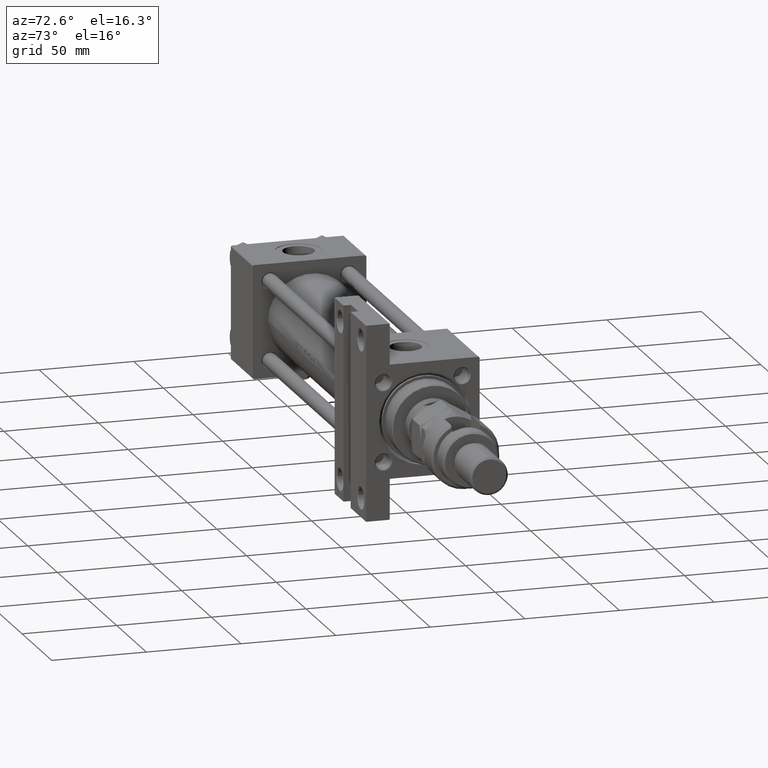
[diagram: clean part render]
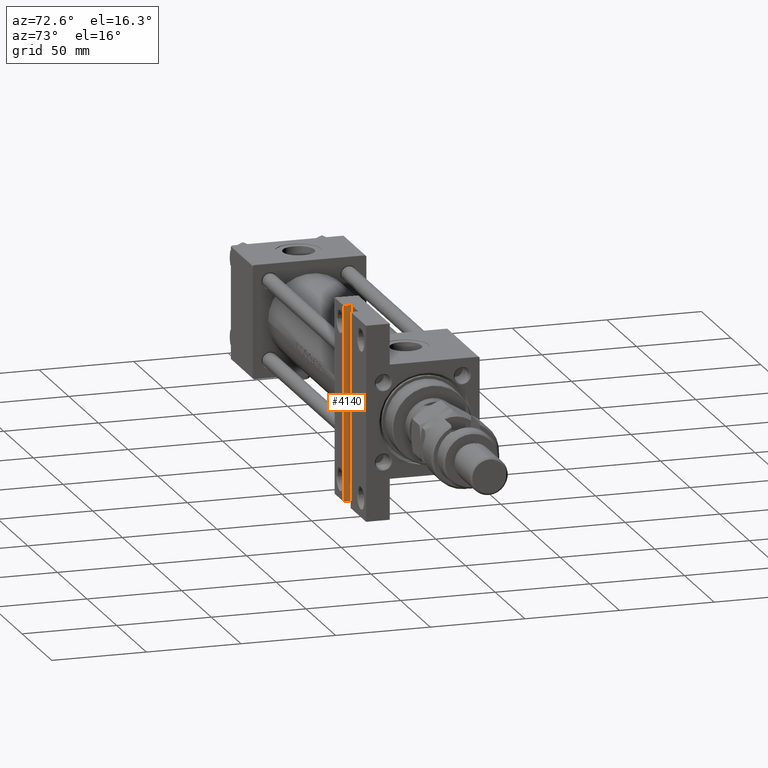
[diagram: same view with one face highlighted and labeled with its STEP entity id]
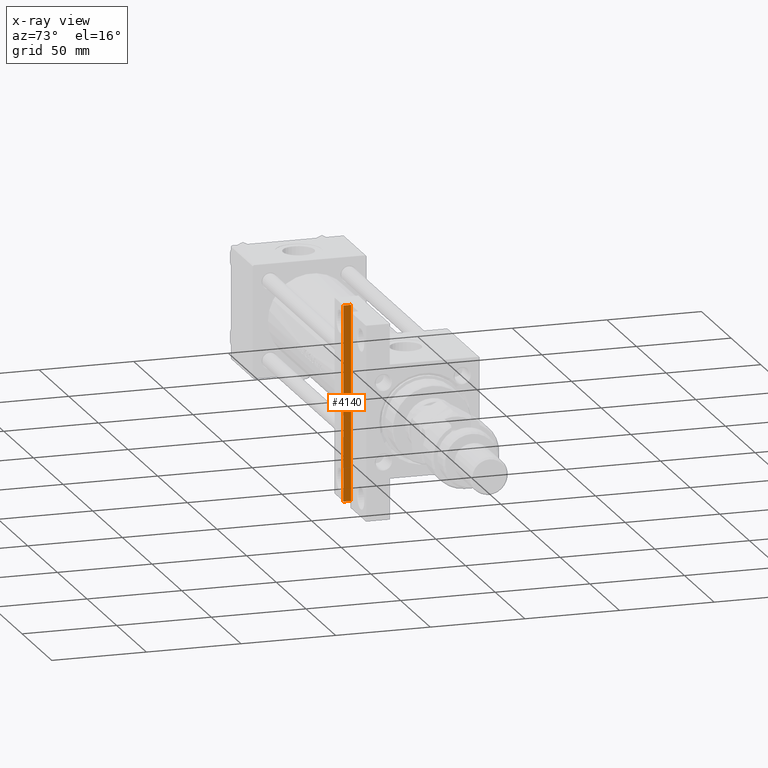
[diagram: x-ray of the same camera — body ghosted, the highlighted face saturated]
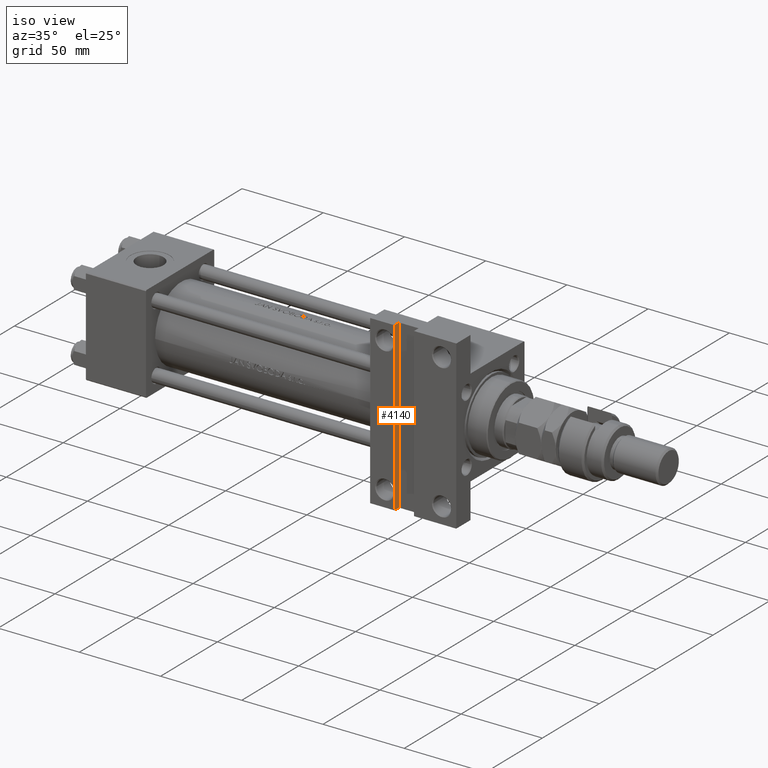
[diagram: same view with one face highlighted and labeled with its STEP entity id]
A machine part, auxiliary view. The second image highlights one B-rep face of the part: STEP entity #4140.
The next image is the same camera in x-ray: the body ghosted, the highlighted face saturated — about 0% of this face is hidden behind the body in this view.
A second angle (iso view) of the same face is appended — the face is thin or edge-on in the first view.
In plain terms, the highlighted planar face has unit normal (-1, 0, 0).
Its self-contained STEP definition (entity closure, byte-faithful):
#1112 = DIRECTION ( 'NONE',  ( -0.000000000000000000, -0.000000000000000000, -1.000000000000000000 ) ) ;
#2929 = EDGE_CURVE ( 'NONE', #38560, #44704, #26129, .T. ) ;
#4120 = FACE_OUTER_BOUND ( 'NONE', #6502, .T. ) ;
#4140 = ADVANCED_FACE ( 'NONE', ( #4120 ), #52939, .F. ) ;
#5505 = DIRECTION ( 'NONE',  ( -0.000000000000000000, -0.000000000000000000, -1.000000000000000000 ) ) ;
#6502 = EDGE_LOOP ( 'NONE', ( #42357, #13482, #31303, #40564 ) ) ;
#10848 = DIRECTION ( 'NONE',  ( 0.000000000000000000, 1.000000000000000000, 0.000000000000000000 ) ) ;
#11067 = VECTOR ( 'NONE', #5505, 1000.000000000000000 ) ;
#11185 = EDGE_CURVE ( 'NONE', #44704, #49314, #30462, .T. ) ;
#11655 = CARTESIAN_POINT ( 'NONE',  ( 190.0000000000000568, -51.50000000000000000, -25.99999999999999645 ) ) ;
#13268 = CARTESIAN_POINT ( 'NONE',  ( 190.0000000000000568, 51.49999999999998579, -29.99999999999999645 ) ) ;
#13376 = CARTESIAN_POINT ( 'NONE',  ( 190.0000000000000568, -51.50000000000000000, -25.99999999999999645 ) ) ;
#13482 = ORIENTED_EDGE ( 'NONE', *, *, #38412, .F. ) ;
#16069 = CARTESIAN_POINT ( 'NONE',  ( 190.0000000000000568, -51.50000000000000000, -25.99999999999999645 ) ) ;
#20767 = VECTOR ( 'NONE', #1112, 1000.000000000000000 ) ;
#21176 = EDGE_CURVE ( 'NONE', #38560, #48259, #21541, .T. ) ;
#21541 = LINE ( 'NONE', #29679, #35922 ) ;
#26129 = LINE ( 'NONE', #13376, #11067 ) ;
#29679 = CARTESIAN_POINT ( 'NONE',  ( 190.0000000000000568, -51.50000000000000000, -25.99999999999999645 ) ) ;
#30462 = LINE ( 'NONE', #39856, #39818 ) ;
#30469 = DIRECTION ( 'NONE',  ( 0.000000000000000000, 1.000000000000000000, 0.000000000000000000 ) ) ;
#31303 = ORIENTED_EDGE ( 'NONE', *, *, #21176, .F. ) ;
#31900 = AXIS2_PLACEMENT_3D ( 'NONE', #16069, #49395, #53203 ) ;
#35119 = CARTESIAN_POINT ( 'NONE',  ( 190.0000000000000568, -51.50000000000000000, -29.99999999999999645 ) ) ;
#35647 = CARTESIAN_POINT ( 'NONE',  ( 190.0000000000000568, 51.49999999999998579, -25.99999999999999645 ) ) ;
#35922 = VECTOR ( 'NONE', #30469, 1000.000000000000000 ) ;
#38412 = EDGE_CURVE ( 'NONE', #48259, #49314, #41795, .T. ) ;
#38516 = CARTESIAN_POINT ( 'NONE',  ( 190.0000000000000568, 51.49999999999998579, -25.99999999999999645 ) ) ;
#38560 = VERTEX_POINT ( 'NONE', #11655 ) ;
#39818 = VECTOR ( 'NONE', #10848, 1000.000000000000000 ) ;
#39856 = CARTESIAN_POINT ( 'NONE',  ( 190.0000000000000568, -51.50000000000000000, -29.99999999999999645 ) ) ;
#40564 = ORIENTED_EDGE ( 'NONE', *, *, #2929, .T. ) ;
#41795 = LINE ( 'NONE', #38516, #20767 ) ;
#42357 = ORIENTED_EDGE ( 'NONE', *, *, #11185, .T. ) ;
#44704 = VERTEX_POINT ( 'NONE', #35119 ) ;
#48259 = VERTEX_POINT ( 'NONE', #35647 ) ;
#49314 = VERTEX_POINT ( 'NONE', #13268 ) ;
#49395 = DIRECTION ( 'NONE',  ( -1.000000000000000000, 0.000000000000000000, 0.000000000000000000 ) ) ;
#52939 = PLANE ( 'NONE',  #31900 ) ;
#53203 = DIRECTION ( 'NONE',  ( 0.000000000000000000, 0.000000000000000000, 1.000000000000000000 ) ) ;